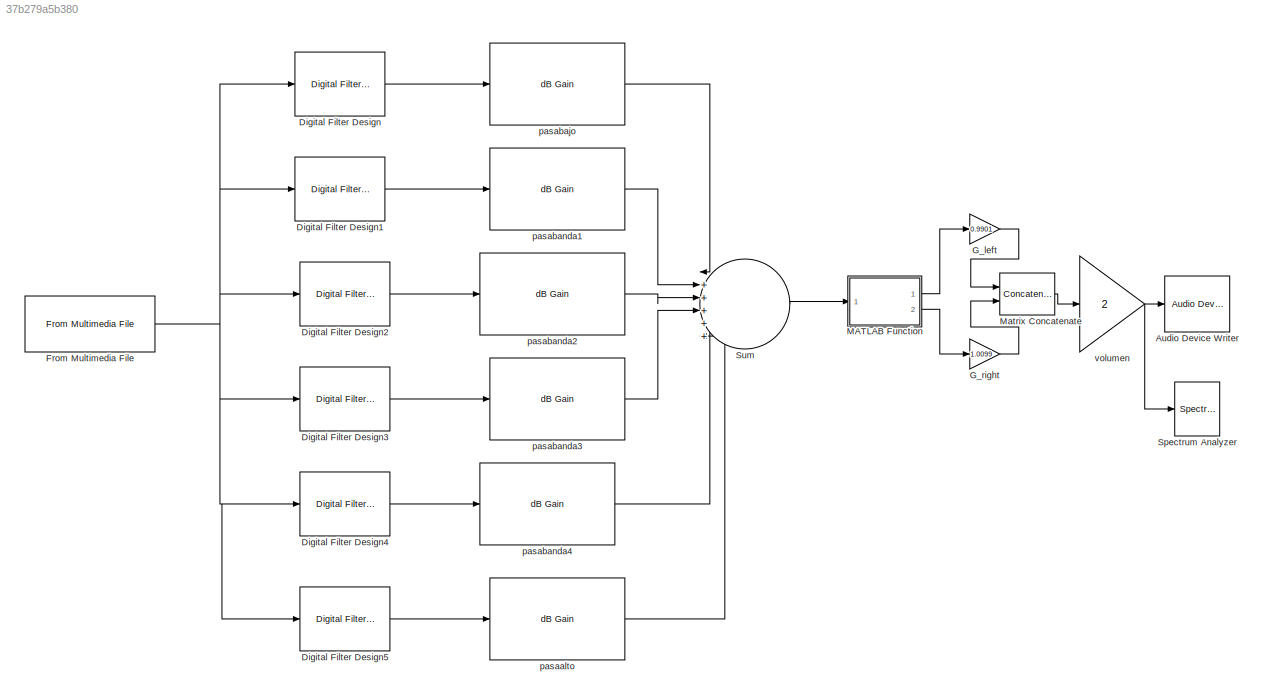
MODEL slx_37b279a5b380
KIND model
CONFIG AbsTol = auto
CONFIG EnableMultiTasking = off
CONFIG FixedStep = auto
CONFIG MaxStep = auto
CONFIG MinStep = auto
CONFIG RelTol = 1e-3
CONFIG SampleTimeConstraint = Unconstrained
CONFIG SolverName = VariableStepAuto
CONFIG StartTime = 0.0
CONFIG StopTime = inf
BLOCK [Reference] Audio Device Writer  REF=dspsnks4/Audio Device
Writer
  Ports = [1]
  SourceBlock = dspsnks4/Audio Device\nWriter
  SourceProductName = DSP System Toolbox
  SourceType = Audio Device Writer
BLOCK [Reference] Digital Filter Design  REF=dsparch4/Digital
Filter Design
  Ports = [1, 1]
  SourceBlock = dsparch4/Digital\nFilter Design
  SourceProductBaseCode = DS
  SourceType = Digital Filter Design
  UserDataPersistent = on
BLOCK [Reference] Digital Filter Design1  REF=dsparch4/Digital
Filter Design
  Ports = [1, 1]
  SourceBlock = dsparch4/Digital\nFilter Design
  SourceProductBaseCode = DS
  SourceType = Digital Filter Design
  UserDataPersistent = on
BLOCK [Reference] Digital Filter Design2  REF=dsparch4/Digital
Filter Design
  Ports = [1, 1]
  SourceBlock = dsparch4/Digital\nFilter Design
  SourceProductBaseCode = DS
  SourceType = Digital Filter Design
  UserDataPersistent = on
BLOCK [Reference] Digital Filter Design3  REF=dsparch4/Digital
Filter Design
  Ports = [1, 1]
  SourceBlock = dsparch4/Digital\nFilter Design
  SourceProductBaseCode = DS
  SourceType = Digital Filter Design
  UserDataPersistent = on
BLOCK [Reference] Digital Filter Design4  REF=dsparch4/Digital
Filter Design
  Ports = [1, 1]
  SourceBlock = dsparch4/Digital\nFilter Design
  SourceProductBaseCode = DS
  SourceType = Digital Filter Design
  UserDataPersistent = on
BLOCK [Reference] Digital Filter Design5  REF=dsparch4/Digital
Filter Design
  Ports = [1, 1]
  SourceBlock = dsparch4/Digital\nFilter Design
  SourceProductBaseCode = DS
  SourceType = Digital Filter Design
  UserDataPersistent = on
BLOCK [Reference] From Multimedia File  REF=dspvision/From Multimedia File
  Ports = [0, 1]
  SourceBlock = dspvision/From Multimedia File
  SourceProductBaseCode = DS,HW,VP
  SourceType = From Multimedia File
BLOCK [Gain] G_left
  Gain = 0.9901
BLOCK [Gain] G_right
  Gain = 1.0099
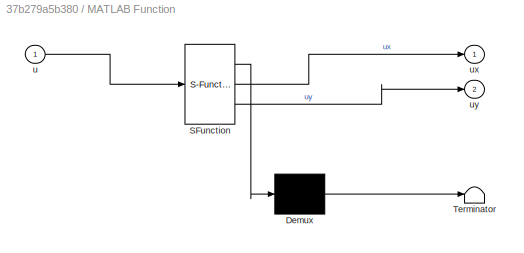
BLOCK [SubSystem] MATLAB Function
  ErrorFcn = Stateflow.Translate.translate
  PermitHierarchicalResolution = ExplicitOnly
  Ports = [1, 2]
  RequestExecContextInheritance = off
  SFBlockType = MATLAB Function
  TreatAsAtomicUnit = on
BLOCK [Demux] MATLAB Function/ Demux 
  Outputs = 1
  Ports = [1, 1]
BLOCK [S-Function] MATLAB Function/ SFunction 
  EnableBusSupport = on
  FunctionName = sf_sfun
  PortCounts = [1 3]
  Ports = [1, 3]
  SFcnIsStateOwnerBlock = off
  SFunctionDeploymentMode = off
  Tag = Stateflow S-Function 2
BLOCK [Terminator] MATLAB Function/ Terminator 
BLOCK [Inport] MATLAB Function/u
BLOCK [Outport] MATLAB Function/ux
BLOCK [Outport] MATLAB Function/uy
  Port = 2
BLOCK [Concatenate] Matrix Concatenate
  ConcatenateDimension = 2
  Mode = Multidimensional array
  Ports = [2, 1]
BLOCK [SpectrumAnalyzer] Spectrum Analyzer
  Ports = [1]
  ScopeSpecificationString = spbscopes.SpectrumAnalyzerBlockCfg('CurrentConfiguration', extmgr.ConfigurationSet(extmgr.Configuration('Core','General UI',true),extmgr.Configuration('Core','Source UI',true),extmgr.Configuration('Sources','WiredSimulink',true),extmgr.Configuration('Visuals','Spectrum',true,'AxesProperties',struct('Color',{[0 0 0],[0 0 0]},'XColor',{[0.686274509803922 0.686274509803922 0.686274509803922],[0.68627...<+4658ch>
BLOCK [Sum] Sum
  Inputs = |++++++
  Ports = [6, 1]
BLOCK [Reference] pasaalto  REF=dspmathops/dB Gain
  Ports = [1, 1]
  SourceBlock = dspmathops/dB Gain
  SourceProductBaseCode = DS
  SourceType = dB Gain
BLOCK [Reference] pasabajo  REF=dspmathops/dB Gain
  Ports = [1, 1]
  SourceBlock = dspmathops/dB Gain
  SourceProductBaseCode = DS
  SourceType = dB Gain
BLOCK [Reference] pasabanda1  REF=dspmathops/dB Gain
  Ports = [1, 1]
  SourceBlock = dspmathops/dB Gain
  SourceProductBaseCode = DS
  SourceType = dB Gain
BLOCK [Reference] pasabanda2  REF=dspmathops/dB Gain
  Ports = [1, 1]
  SourceBlock = dspmathops/dB Gain
  SourceProductBaseCode = DS
  SourceType = dB Gain
BLOCK [Reference] pasabanda3  REF=dspmathops/dB Gain
  Ports = [1, 1]
  SourceBlock = dspmathops/dB Gain
  SourceProductBaseCode = DS
  SourceType = dB Gain
BLOCK [Reference] pasabanda4  REF=dspmathops/dB Gain
  Ports = [1, 1]
  SourceBlock = dspmathops/dB Gain
  SourceProductBaseCode = DS
  SourceType = dB Gain
BLOCK [Gain] volumen
  Gain = 2
LINE Digital Filter Design1:1 -> pasabanda1:1
LINE Digital Filter Design2:1 -> pasabanda2:1
LINE Digital Filter Design3:1 -> pasabanda3:1
LINE Digital Filter Design4:1 -> pasabanda4:1
LINE Digital Filter Design5:1 -> pasaalto:1
LINE Digital Filter Design:1 -> pasabajo:1
NET From Multimedia File:1 -> Digital Filter Design1:1, Digital Filter Design2:1, Digital Filter Design3:1, Digital Filter Design4:1, Digital Filter Design5:1, Digital Filter Design:1
LINE G_left:1 -> Matrix Concatenate:1
LINE G_right:1 -> Matrix Concatenate:2
LINE MATLAB Function:1 -> G_left:1
LINE MATLAB Function:2 -> G_right:1
LINE Matrix Concatenate:1 -> volumen:1
LINE Sum:1 -> MATLAB Function:1
LINE pasaalto:1 -> Sum:6
LINE pasabajo:1 -> Sum:1
LINE pasabanda1:1 -> Sum:2
LINE pasabanda2:1 -> Sum:3
LINE pasabanda3:1 -> Sum:4
LINE pasabanda4:1 -> Sum:5
NET volumen:1 -> Audio Device Writer:1, Spectrum Analyzer:1
note: NET lines group one-source signal fan-out (src -> all destinations, sorted); 1:1 wires keep LINE
CHART MATLAB Function states=1 transitions=1
  STATE_LABEL 'eML_blk_kernel()'
  STATE_LABEL 'SCRIPT:\nfunction [ux,uy] = fcn(u)\n\nux = u(:,1);\nuy = u(:,2);\n'
CHART  states=0 transitions=0
